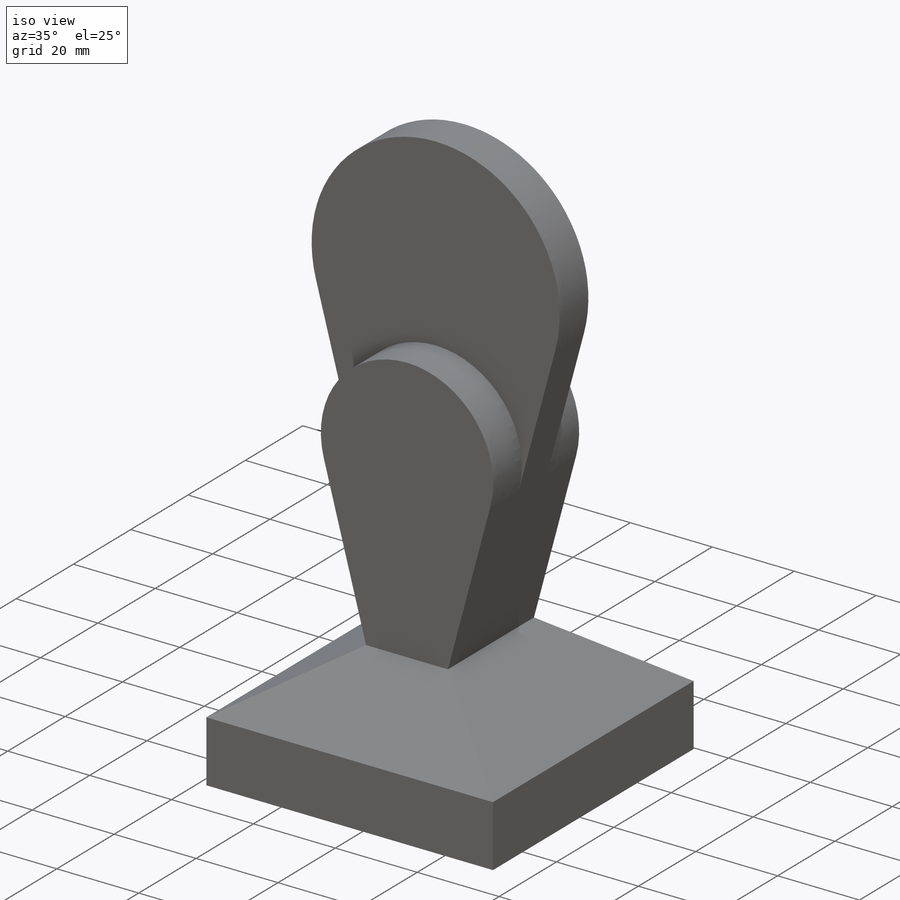
[diagram: iso view]
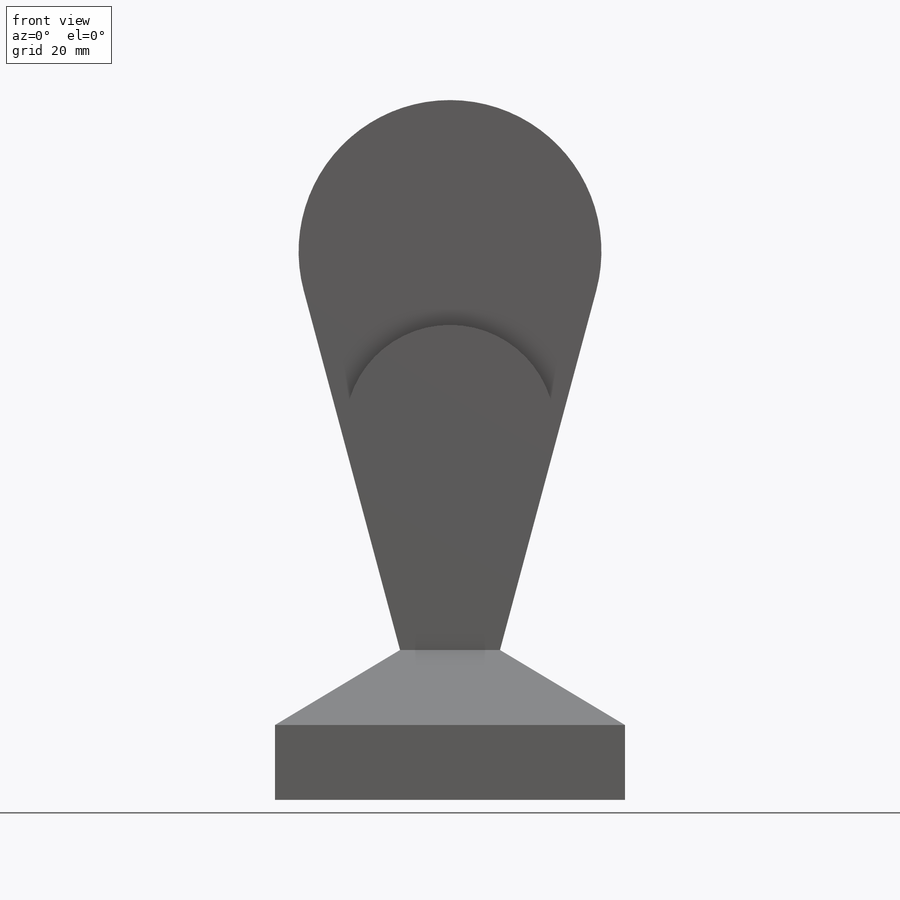
[diagram: front view]
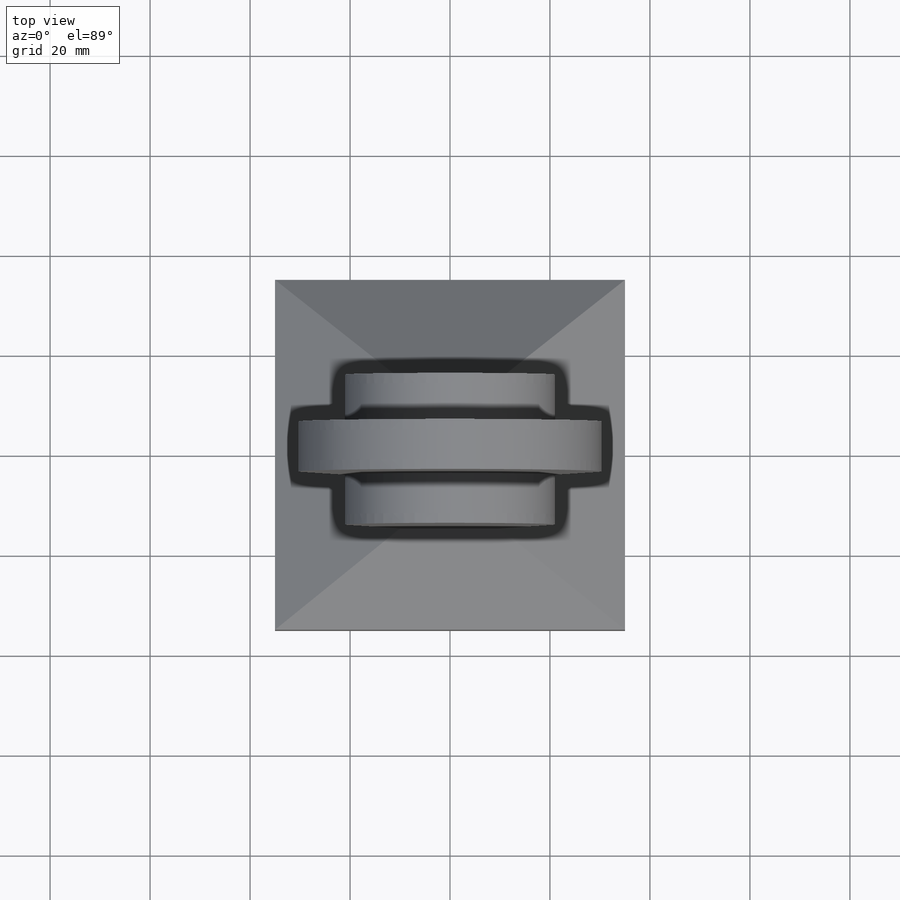
[diagram: top view]
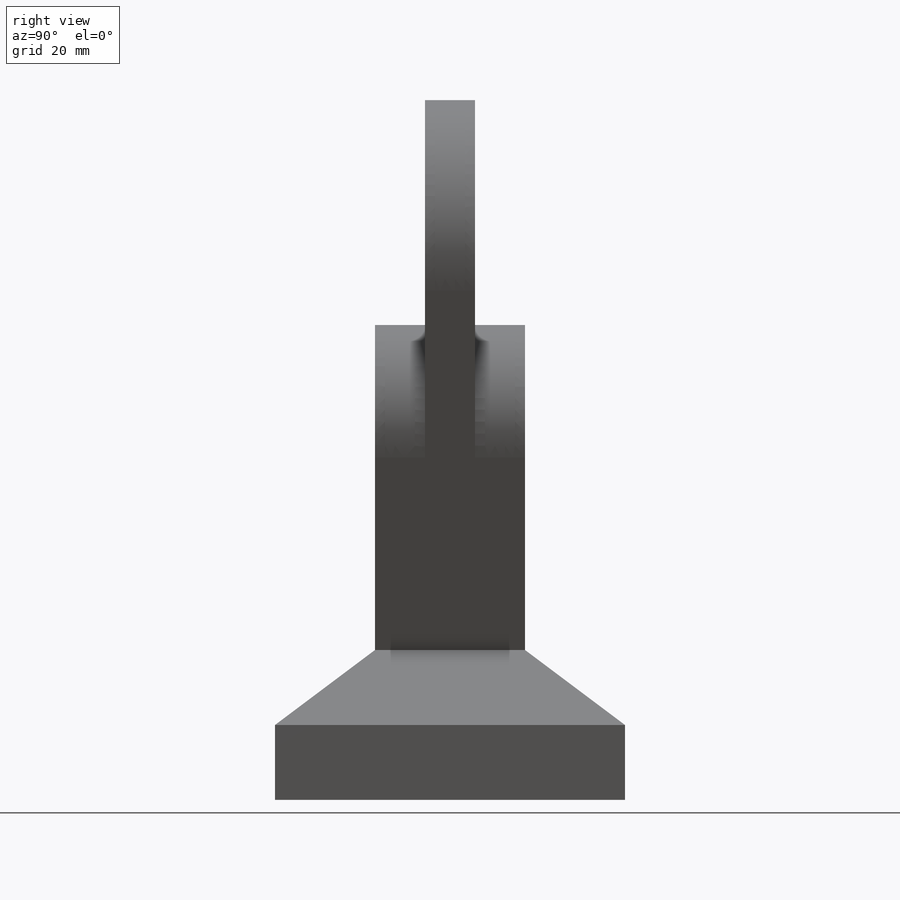
[diagram: right view]
SOLIDWORKS PART (.sldprt)
format: sldprt  version: not decoded by parser v0  size: 265,728 bytes
history: native  units: mm
features: sketch x5, extrude x3, material x1, plane x1 (+14 scaffold rows collapsed)
feature tree (24):
  scaffold x14  (default folders/planes/origin — collapsed)
  material  "Material <not specified>"
  sketch  "Sketch1"  dims[D1=70.0mm]
  extrude  "Extrude1"  Depth=15mm
  sketch  "Sketch2"
  plane  "Plane1"  Offset=15mm
  sketch  "Sketch3"  dims[D1=30.0mm D2=20.0mm]
  sketch  "Sketch4"  dims[c1.D1=~90.796404mm c2.D1=75.0deg c2.D2=~90.019591mm c3.D2=75.0deg c3.D3=140.0mm]
  extrude  "Extrude2"  Depth=10mm
  sketch  "Sketch5"  dims[D1=95.0mm]
  extrude  "Extrude3"  Depth=30mm
decode coverage: 7 of 8 modeling features carry decoded parameters
note: ~ marks probable driven/reference dimensions
note: suppression state not decoded; provenance and decode notes live in map.json
